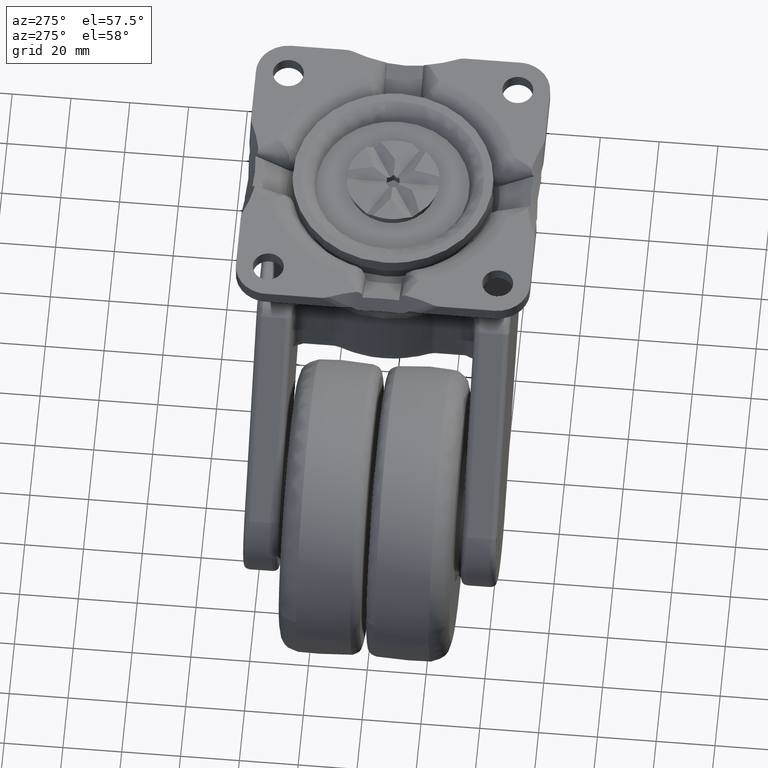
[diagram: clean part render]
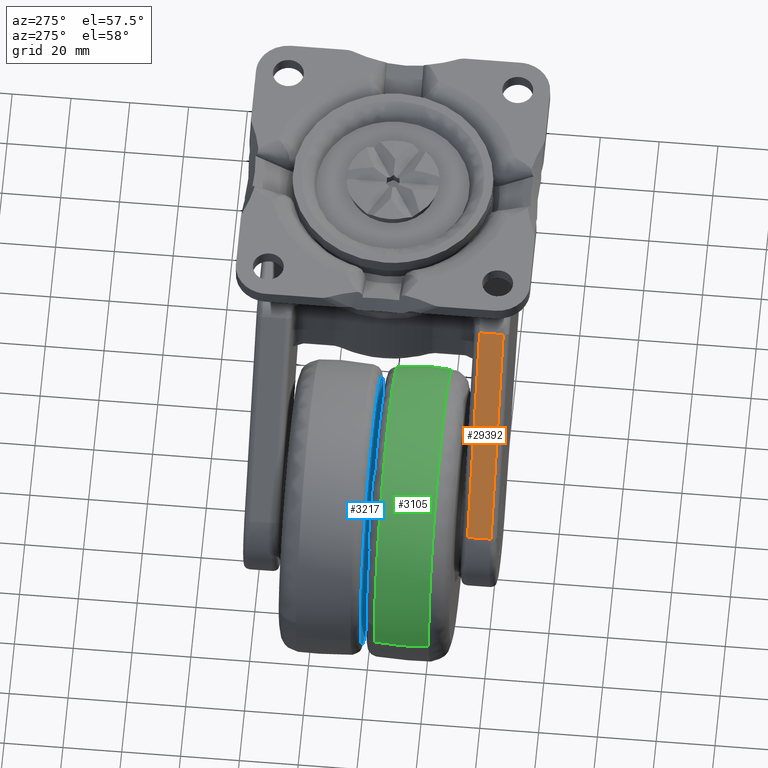
[diagram: same view with three faces highlighted in distinct colors, each labeled with its STEP entity id]
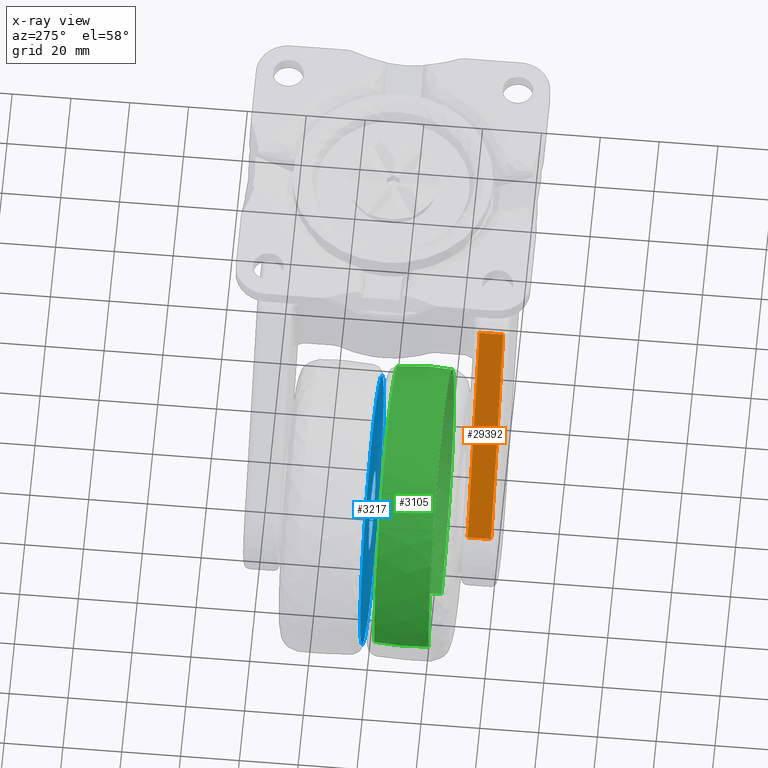
[diagram: x-ray of the same camera — body ghosted, the three highlighted faces saturated]
A machine part, auxiliary view with three faces highlighted in distinct colors.
The next image is the same camera in x-ray (body ghosted, the three faces saturated) — at least one of them is partly hidden behind the body in this view.
Their STEP definitions:

[orange] entity #29392 — the highlighted face is a freeform B-spline surface patch.
#28112=CARTESIAN_POINT('',(-87.504346547844392,-33.0,-67.080286466122487));
#28113=VERTEX_POINT('',#28112);
#28177=CARTESIAN_POINT('',(-40.395540364467550,-33.0,-11.810534422999121));
#28178=VERTEX_POINT('',#28177);
#28200=CARTESIAN_POINT('',(-40.395540364467550,-33.0,-11.810534422999121));
#28201=CARTESIAN_POINT('',(-87.504346547844392,-33.0,-67.080286466122487));
#28202=QUASI_UNIFORM_CURVE('',1,(#28200,#28201),.UNSPECIFIED.,.F.,.U.);
#28203=EDGE_CURVE('',#28178,#28113,#28202,.T.);
#28731=CARTESIAN_POINT('',(-40.395540364467550,-41.0,-11.810534422999121));
#28732=VERTEX_POINT('',#28731);
#28746=CARTESIAN_POINT('',(-87.504346547844392,-41.0,-67.080286466122487));
#28747=VERTEX_POINT('',#28746);
#28748=CARTESIAN_POINT('',(-87.504346547844392,-41.0,-67.080286466122487));
#28749=CARTESIAN_POINT('',(-40.395540364467550,-41.0,-11.810534422999121));
#28750=QUASI_UNIFORM_CURVE('',1,(#28748,#28749),.UNSPECIFIED.,.F.,.U.);
#28751=EDGE_CURVE('',#28747,#28732,#28750,.T.);
#29373=CARTESIAN_POINT('',(-89.857431157092350,-41.399599984494458,-69.841010276090614));
#29374=CARTESIAN_POINT('',(-38.042457861147362,-41.399599984494458,-9.049813083781444));
#29375=CARTESIAN_POINT('',(-89.857431157092350,-32.600399800928827,-69.841010276090614));
#29376=CARTESIAN_POINT('',(-38.042457861147362,-32.600399800928827,-9.049813083781444));
#29377=B_SPLINE_SURFACE_WITH_KNOTS('',1,1,((#29373,#29375),(#29374,#29376)),.UNSPECIFIED.,.F.,.F.,.U.,(2,2),(2,2),(0.0,79.877162654501632),(0.0,8.799200183565624),.UNSPECIFIED.);
#29378=CARTESIAN_POINT('',(-40.395540364467550,-33.0,-11.810534422999121));
#29379=CARTESIAN_POINT('',(-40.395540364467550,-41.0,-11.810534422999121));
#29380=QUASI_UNIFORM_CURVE('',1,(#29378,#29379),.UNSPECIFIED.,.F.,.U.);
#29381=EDGE_CURVE('',#28178,#28732,#29380,.T.);
#29382=ORIENTED_EDGE('',*,*,#29381,.F.);
#29383=ORIENTED_EDGE('',*,*,#28203,.T.);
#29384=CARTESIAN_POINT('',(-87.504346547844392,-33.0,-67.080286466122487));
#29385=CARTESIAN_POINT('',(-87.504346547844392,-41.0,-67.080286466122487));
#29386=QUASI_UNIFORM_CURVE('',1,(#29384,#29385),.UNSPECIFIED.,.F.,.U.);
#29387=EDGE_CURVE('',#28113,#28747,#29386,.T.);
#29388=ORIENTED_EDGE('',*,*,#29387,.T.);
#29389=ORIENTED_EDGE('',*,*,#28751,.T.);
#29390=EDGE_LOOP('',(#29382,#29383,#29388,#29389));
#29391=FACE_OUTER_BOUND('',#29390,.T.);
#29392=ADVANCED_FACE('',(#29391),#29377,.T.);

[blue] entity #3217 — the highlighted face is a freeform B-spline surface patch.
#472=CARTESIAN_POINT('',(-80.948143235102833,1.0,-74.101382418190369));
#473=VERTEX_POINT('',#472);
#474=CARTESIAN_POINT('',(-70.0,1.0,-68.500000000000000));
#475=VERTEX_POINT('',#474);
#476=CARTESIAN_POINT('',(-80.948143235102833,1.0,-74.101382418190369));
#477=CARTESIAN_POINT('',(-76.906985140922359,1.0,-68.500000000000000));
#478=CARTESIAN_POINT('',(-70.0,1.0,-68.500000000000000));
#486=(BOUNDED_CURVE()B_SPLINE_CURVE(2,(#476,#477,#478),.UNSPECIFIED.,.F.,.U.)B_SPLINE_CURVE_WITH_KNOTS((3,3),(0.850743050382080,1.0),.UNSPECIFIED.)CURVE()GEOMETRIC_REPRESENTATION_ITEM()RATIONAL_B_SPLINE_CURVE((0.859068214727308,0.825134606384520,1.0))REPRESENTATION_ITEM(''));
#487=EDGE_CURVE('',#473,#475,#486,.T.);
#558=CARTESIAN_POINT('',(-83.474819778686481,1.0,-82.824155283863035));
#559=VERTEX_POINT('',#558);
#565=CARTESIAN_POINT('',(-70.0,1.0,-95.500000000000000));
#566=VERTEX_POINT('',#565);
#567=CARTESIAN_POINT('',(-70.0,1.0,-95.500000000000000));
#568=CARTESIAN_POINT('',(-82.699531902957787,1.0,-95.500000000000014));
#569=CARTESIAN_POINT('',(-83.474819778686481,1.0,-82.824155283863035));
#577=(BOUNDED_CURVE()B_SPLINE_CURVE(2,(#567,#568,#569),.UNSPECIFIED.,.F.,.U.)B_SPLINE_CURVE_WITH_KNOTS((3,3),(0.500000000000000,0.739332962238319),.UNSPECIFIED.)CURVE()GEOMETRIC_REPRESENTATION_ITEM()RATIONAL_B_SPLINE_CURVE((1.0,0.719603993287441,0.976072041665380))REPRESENTATION_ITEM(''));
#578=EDGE_CURVE('',#566,#559,#577,.T.);
#580=CARTESIAN_POINT('',(-70.0,1.0,-68.500000000000000));
#581=CARTESIAN_POINT('',(-56.500000000000021,1.0,-68.500000000000000));
#582=CARTESIAN_POINT('',(-56.500000000000007,1.0,-82.0));
#583=CARTESIAN_POINT('',(-56.500000000000021,1.0,-95.500000000000000));
#584=CARTESIAN_POINT('',(-70.0,1.0,-95.500000000000000));
#592=(BOUNDED_CURVE()B_SPLINE_CURVE(2,(#580,#581,#582,#583,#584),.UNSPECIFIED.,.F.,.U.)B_SPLINE_CURVE_WITH_KNOTS((3,2,3),(0.0,0.250000000000000,0.500000000000000),.UNSPECIFIED.)CURVE()GEOMETRIC_REPRESENTATION_ITEM()RATIONAL_B_SPLINE_CURVE((1.0,0.707106781186548,1.0,0.707106781186548,1.0))REPRESENTATION_ITEM(''));
#593=EDGE_CURVE('',#475,#566,#592,.T.);
#612=CARTESIAN_POINT('',(-83.474819778686481,1.0,-82.824155283863035));
#613=CARTESIAN_POINT('',(-83.500000000000000,1.0,-82.412462304673838));
#614=CARTESIAN_POINT('',(-83.500000000000000,1.0,-82.0));
#615=CARTESIAN_POINT('',(-83.500000000000000,1.0,-77.638468887838656));
#616=CARTESIAN_POINT('',(-80.948143235102833,1.0,-74.101382418190369));
#624=(BOUNDED_CURVE()B_SPLINE_CURVE(2,(#612,#613,#614,#615,#616),.UNSPECIFIED.,.F.,.U.)B_SPLINE_CURVE_WITH_KNOTS((3,2,3),(0.739332962238319,0.750000000000000,0.850743050382079),.UNSPECIFIED.)CURVE()GEOMETRIC_REPRESENTATION_ITEM()RATIONAL_B_SPLINE_CURVE((0.976072041665382,0.987502787899107,1.0,0.881972174802028,0.859068214727308))REPRESENTATION_ITEM(''));
#625=EDGE_CURVE('',#559,#473,#624,.T.);
#2243=CARTESIAN_POINT('',(-53.760594531535752,1.000000000000001,-124.888851649123690));
#2244=VERTEX_POINT('',#2243);
#2258=CARTESIAN_POINT('',(-70.0,1.0,-127.860351999999910));
#2259=VERTEX_POINT('',#2258);
#2260=CARTESIAN_POINT('',(-53.760594531535759,1.000000000000001,-124.888851649123720));
#2261=CARTESIAN_POINT('',(-61.608433423426540,1.0,-127.860351999999860));
#2262=CARTESIAN_POINT('',(-70.0,1.0,-127.860351999999910));
#2270=(BOUNDED_CURVE()B_SPLINE_CURVE(2,(#2260,#2261,#2262),.UNSPECIFIED.,.F.,.U.)B_SPLINE_CURVE_WITH_KNOTS((3,3),(0.439864366382972,0.500000000000000),.UNSPECIFIED.)CURVE()GEOMETRIC_REPRESENTATION_ITEM()RATIONAL_B_SPLINE_CURVE((0.892987465346021,0.929546722818089,1.0))REPRESENTATION_ITEM(''));
#2271=EDGE_CURVE('',#2244,#2259,#2270,.T.);
#2273=CARTESIAN_POINT('',(-70.0,1.0,-36.139648000000108));
#2274=VERTEX_POINT('',#2273);
#2275=CARTESIAN_POINT('',(-70.0,1.0,-127.860351999999910));
#2276=CARTESIAN_POINT('',(-115.860351999999920,1.0,-127.860351999999890));
#2277=CARTESIAN_POINT('',(-115.860351999999910,1.0,-82.0));
#2278=CARTESIAN_POINT('',(-115.860351999999920,1.0,-36.139648000000101));
#2279=CARTESIAN_POINT('',(-70.0,1.0,-36.139648000000108));
#2287=(BOUNDED_CURVE()B_SPLINE_CURVE(2,(#2275,#2276,#2277,#2278,#2279),.UNSPECIFIED.,.F.,.U.)B_SPLINE_CURVE_WITH_KNOTS((3,2,3),(0.500000000000000,0.750000000000000,1.0),.UNSPECIFIED.)CURVE()GEOMETRIC_REPRESENTATION_ITEM()RATIONAL_B_SPLINE_CURVE((1.0,0.707106781186547,1.0,0.707106781186547,1.0))REPRESENTATION_ITEM(''));
#2288=EDGE_CURVE('',#2259,#2274,#2287,.T.);
#2290=CARTESIAN_POINT('',(-24.501270567257219,1.000000000000001,-76.252173790406772));
#2291=VERTEX_POINT('',#2290);
#2292=CARTESIAN_POINT('',(-70.0,1.0,-36.139648000000108));
#2293=CARTESIAN_POINT('',(-29.568661024950835,1.0,-36.139648000000101));
#2294=CARTESIAN_POINT('',(-24.501270567257222,1.000000000000001,-76.252173790406772));
#2302=(BOUNDED_CURVE()B_SPLINE_CURVE(2,(#2292,#2293,#2294),.UNSPECIFIED.,.F.,.U.)B_SPLINE_CURVE_WITH_KNOTS((3,3),(0.0,0.228321256479597),.UNSPECIFIED.)CURVE()GEOMETRIC_REPRESENTATION_ITEM()RATIONAL_B_SPLINE_CURVE((1.0,0.732505009064636,0.953608357588158))REPRESENTATION_ITEM(''));
#2303=EDGE_CURVE('',#2274,#2291,#2302,.T.);
#2401=CARTESIAN_POINT('',(-24.501270567257226,1.000000000000001,-76.252173790406758));
#2402=CARTESIAN_POINT('',(-24.139648000000111,1.0,-79.114711213518618));
#2403=CARTESIAN_POINT('',(-24.139648000000111,1.0,-82.0));
#2404=CARTESIAN_POINT('',(-24.139648000000111,1.0,-113.673196701891300));
#2405=CARTESIAN_POINT('',(-53.760594531535752,1.000000000000001,-124.888851649123680));
#2413=(BOUNDED_CURVE()B_SPLINE_CURVE(2,(#2401,#2402,#2403,#2404,#2405),.UNSPECIFIED.,.F.,.U.)B_SPLINE_CURVE_WITH_KNOTS((3,2,3),(0.228321256479597,0.250000000000000,0.439864366382972),.UNSPECIFIED.)CURVE()GEOMETRIC_REPRESENTATION_ITEM()RATIONAL_B_SPLINE_CURVE((0.953608357588158,0.974601772121912,1.0,0.777560058368459,0.892987465346020))REPRESENTATION_ITEM(''));
#2414=EDGE_CURVE('',#2291,#2244,#2413,.T.);
#3200=CARTESIAN_POINT('',(-120.441731565640690,1.0,-132.441800987027310));
#3201=CARTESIAN_POINT('',(-120.441731565640690,1.0,-31.558196552831649));
#3202=CARTESIAN_POINT('',(-19.559655791857939,1.0,-132.441800987027310));
#3203=CARTESIAN_POINT('',(-19.559655791857939,1.0,-31.558196552831649));
#3204=B_SPLINE_SURFACE_WITH_KNOTS('',1,1,((#3200,#3202),(#3201,#3203)),.UNSPECIFIED.,.F.,.F.,.U.,(2,2),(2,2),(0.0,100.883604434195700),(0.0,100.882075773782800),.UNSPECIFIED.);
#3205=ORIENTED_EDGE('',*,*,#2288,.F.);
#3206=ORIENTED_EDGE('',*,*,#2271,.F.);
#3207=ORIENTED_EDGE('',*,*,#2414,.F.);
#3208=ORIENTED_EDGE('',*,*,#2303,.F.);
#3209=EDGE_LOOP('',(#3205,#3206,#3207,#3208));
#3210=FACE_OUTER_BOUND('',#3209,.T.);
#3211=ORIENTED_EDGE('',*,*,#593,.T.);
#3212=ORIENTED_EDGE('',*,*,#578,.T.);
#3213=ORIENTED_EDGE('',*,*,#625,.T.);
#3214=ORIENTED_EDGE('',*,*,#487,.T.);
#3215=EDGE_LOOP('',(#3211,#3212,#3213,#3214));
#3216=FACE_BOUND('',#3215,.T.);
#3217=ADVANCED_FACE('',(#3210,#3216),#3204,.F.);

[green] entity #3105 — the highlighted face is a freeform B-spline surface patch.
#2460=CARTESIAN_POINT('',(-21.814614185604739,-4.075178006739032,-92.585782250030746));
#2461=VERTEX_POINT('',#2460);
#2475=CARTESIAN_POINT('',(-70.0,-4.075199615467200,-131.334476752008100));
#2476=VERTEX_POINT('',#2475);
#2477=CARTESIAN_POINT('',(-21.814614185604739,-4.075178006739032,-92.585782250030746));
#2478=CARTESIAN_POINT('',(-30.327259561233504,-4.075199511086208,-131.334476934002370));
#2479=CARTESIAN_POINT('',(-70.0,-4.075199615467200,-131.334476752008100));
#2487=(BOUNDED_CURVE()B_SPLINE_CURVE(2,(#2477,#2478,#2479),.UNSPECIFIED.,.F.,.U.)B_SPLINE_CURVE_WITH_KNOTS((3,3),(0.286726866654243,0.500000000000000),.UNSPECIFIED.)CURVE()GEOMETRIC_REPRESENTATION_ITEM()RATIONAL_B_SPLINE_CURVE((0.926585926404647,0.750134981951722,1.0))REPRESENTATION_ITEM(''));
#2488=EDGE_CURVE('',#2461,#2476,#2487,.T.);
#2490=CARTESIAN_POINT('',(-119.004510757668900,-4.075195262338335,-87.696355788554911));
#2491=VERTEX_POINT('',#2490);
#2505=CARTESIAN_POINT('',(-119.085386698504490,-4.075189863334661,-77.048707424651781));
#2506=VERTEX_POINT('',#2505);
#2507=CARTESIAN_POINT('',(-119.004510757668910,-4.075195262338335,-87.696355788554911));
#2508=CARTESIAN_POINT('',(-119.334476021567530,-4.075193969185103,-84.857734970896715));
#2509=CARTESIAN_POINT('',(-119.334475845166910,-4.075192517006574,-82.000000669213279));
#2510=CARTESIAN_POINT('',(-119.334475691964850,-4.075191255804797,-79.518088488223086));
#2511=CARTESIAN_POINT('',(-119.085386698504440,-4.075189863334661,-77.048707424651781));
#2519=(BOUNDED_CURVE()B_SPLINE_CURVE(2,(#2507,#2508,#2509,#2510,#2511),.UNSPECIFIED.,.F.,.U.)B_SPLINE_CURVE_WITH_KNOTS((3,2,3),(0.730000039652547,0.750000000000000,0.767423445131427),.UNSPECIFIED.)CURVE()GEOMETRIC_REPRESENTATION_ITEM()RATIONAL_B_SPLINE_CURVE((0.956886196236501,0.976568588950773,1.0,0.979587164290546,0.962019623964777))REPRESENTATION_ITEM(''));
#2520=EDGE_CURVE('',#2491,#2506,#2519,.T.);
#2615=CARTESIAN_POINT('',(-70.0,-4.075145122996375,-32.665529911929397));
#2616=VERTEX_POINT('',#2615);
#2617=CARTESIAN_POINT('',(-119.085386698504440,-4.075189863334661,-77.048707424651781));
#2618=CARTESIAN_POINT('',(-114.608406533325790,-4.075165308743641,-32.665530196956368));
#2619=CARTESIAN_POINT('',(-70.0,-4.075145122996375,-32.665529911929397));
#2627=(BOUNDED_CURVE()B_SPLINE_CURVE(2,(#2617,#2618,#2619),.UNSPECIFIED.,.F.,.U.)B_SPLINE_CURVE_WITH_KNOTS((3,3),(0.767423445131428,1.0),.UNSPECIFIED.)CURVE()GEOMETRIC_REPRESENTATION_ITEM()RATIONAL_B_SPLINE_CURVE((0.962019623964776,0.727519616896001,1.0))REPRESENTATION_ITEM(''));
#2628=EDGE_CURVE('',#2506,#2616,#2627,.T.);
#2630=CARTESIAN_POINT('',(-70.0,-4.075145122996375,-32.665529911929397));
#2631=CARTESIAN_POINT('',(-20.665529245749177,-4.075145039057501,-32.665530058281632));
#2632=CARTESIAN_POINT('',(-20.665528417330119,-4.075172180911910,-82.000003660315230));
#2633=CARTESIAN_POINT('',(-20.665528327405259,-4.075175127159555,-87.355259586416494));
#2634=CARTESIAN_POINT('',(-21.814614185604739,-4.075178006739032,-92.585782250030746));
#2642=(BOUNDED_CURVE()B_SPLINE_CURVE(2,(#2630,#2631,#2632,#2633,#2634),.UNSPECIFIED.,.F.,.U.)B_SPLINE_CURVE_WITH_KNOTS((3,2,3),(0.0,0.250000000000000,0.286726866654243),.UNSPECIFIED.)CURVE()GEOMETRIC_REPRESENTATION_ITEM()RATIONAL_B_SPLINE_CURVE((1.0,0.707106781186547,1.0,0.956971799234825,0.926585926404647))REPRESENTATION_ITEM(''));
#2643=EDGE_CURVE('',#2616,#2461,#2642,.T.);
#2666=CARTESIAN_POINT('',(-54.169124254804863,-22.590360868650340,-34.910495128110178));
#2667=VERTEX_POINT('',#2666);
#2668=CARTESIAN_POINT('',(-20.571477017574111,-22.590351365811038,-77.014094920766382));
#2669=VERTEX_POINT('',#2668);
#2670=CARTESIAN_POINT('',(-54.169124254804856,-22.590360868650343,-34.910495128110171));
#2671=CARTESIAN_POINT('',(-23.788249168682270,-22.590358549978681,-45.124148289022258));
#2672=CARTESIAN_POINT('',(-20.571477017574114,-22.590351365811038,-77.014094920766382));
#2680=(BOUNDED_CURVE()B_SPLINE_CURVE(2,(#2670,#2671,#2672),.UNSPECIFIED.,.F.,.U.)B_SPLINE_CURVE_WITH_KNOTS((3,3),(0.054168823066889,0.232576555802283),.UNSPECIFIED.)CURVE()GEOMETRIC_REPRESENTATION_ITEM()RATIONAL_B_SPLINE_CURVE((0.900576160871229,0.782136425779017,0.962019625847641))REPRESENTATION_ITEM(''));
#2681=EDGE_CURVE('',#2667,#2669,#2680,.T.);
#2764=CARTESIAN_POINT('',(-70.0,-22.590361450521598,-32.320647186090397));
#2765=VERTEX_POINT('',#2764);
#2766=CARTESIAN_POINT('',(-70.0,-22.590361450521598,-32.320647186090397));
#2767=CARTESIAN_POINT('',(-61.872719390581864,-22.590361450521602,-32.320647186090390));
#2768=CARTESIAN_POINT('',(-54.169124254804856,-22.590360868650347,-34.910495128110178));
#2776=(BOUNDED_CURVE()B_SPLINE_CURVE(2,(#2766,#2767,#2768),.UNSPECIFIED.,.F.,.U.)B_SPLINE_CURVE_WITH_KNOTS((3,3),(0.0,0.054168823066889),.UNSPECIFIED.)CURVE()GEOMETRIC_REPRESENTATION_ITEM()RATIONAL_B_SPLINE_CURVE((1.0,0.936537276210410,0.900576160871229))REPRESENTATION_ITEM(''));
#2777=EDGE_CURVE('',#2765,#2667,#2776,.T.);
#2779=CARTESIAN_POINT('',(-119.347087251288600,-22.590326149548009,-87.736148372364823));
#2780=VERTEX_POINT('',#2779);
#2781=CARTESIAN_POINT('',(-119.347087251288640,-22.590326149548012,-87.736148372364823));
#2782=CARTESIAN_POINT('',(-119.679355953179380,-22.590327059998049,-84.877697768358004));
#2783=CARTESIAN_POINT('',(-119.679355859850600,-22.590328082409918,-82.000000354062820));
#2784=CARTESIAN_POINT('',(-119.679354248661410,-22.590345732896708,-32.320647352867191));
#2785=CARTESIAN_POINT('',(-70.0,-22.590361450521598,-32.320647186090397));
#2793=(BOUNDED_CURVE()B_SPLINE_CURVE(2,(#2781,#2782,#2783,#2784,#2785),.UNSPECIFIED.,.F.,.U.)B_SPLINE_CURVE_WITH_KNOTS((3,2,3),(0.730000137760226,0.750000000000000,1.0),.UNSPECIFIED.)CURVE()GEOMETRIC_REPRESENTATION_ITEM()RATIONAL_B_SPLINE_CURVE((0.956886389336359,0.976568703891067,1.0,0.707106781186548,1.0))REPRESENTATION_ITEM(''));
#2794=EDGE_CURVE('',#2780,#2765,#2793,.T.);
#2796=CARTESIAN_POINT('',(-70.0,-22.590338941506740,-131.679354847171710));
#2797=VERTEX_POINT('',#2796);
#2811=CARTESIAN_POINT('',(-20.571477017574107,-22.590351365811035,-77.014094920766382));
#2812=CARTESIAN_POINT('',(-20.320647186090408,-22.590350762204448,-79.500738623304827));
#2813=CARTESIAN_POINT('',(-20.320647186090412,-22.590350196014171,-82.000001016631060));
#2814=CARTESIAN_POINT('',(-20.320647186090401,-22.590338941506740,-131.679354847171740));
#2815=CARTESIAN_POINT('',(-70.0,-22.590338941506740,-131.679354847171710));
#2823=(BOUNDED_CURVE()B_SPLINE_CURVE(2,(#2811,#2812,#2813,#2814,#2815),.UNSPECIFIED.,.F.,.U.)B_SPLINE_CURVE_WITH_KNOTS((3,2,3),(0.232576555802283,0.250000000000000,0.500000000000000),.UNSPECIFIED.)CURVE()GEOMETRIC_REPRESENTATION_ITEM()RATIONAL_B_SPLINE_CURVE((0.962019625847641,0.979587165384456,1.0,0.707106781186548,1.0))REPRESENTATION_ITEM(''));
#2824=EDGE_CURVE('',#2669,#2797,#2823,.T.);
#3012=CARTESIAN_POINT('',(-118.885899501453450,-3.139488662628267,-87.682578635520130));
#3013=CARTESIAN_POINT('',(-119.665582081654190,-9.043770787833900,-87.773210241318921));
#3014=CARTESIAN_POINT('',(-119.665582081654240,-15.000000000000002,-87.773210241318935));
#3015=CARTESIAN_POINT('',(-119.665582081654150,-19.270538672028835,-87.773210241318935));
#3016=CARTESIAN_POINT('',(-119.263919295912600,-23.521889940049924,-87.726520288015124));
#3017=CARTESIAN_POINT('',(-119.215067510012430,-3.139488662628268,-84.850822980627598));
#3018=CARTESIAN_POINT('',(-119.999999999999990,-9.043770787833900,-84.896290836183084));
#3019=CARTESIAN_POINT('',(-119.999999999999970,-14.999999999999996,-84.896290836183070));
#3020=CARTESIAN_POINT('',(-120.000000000000070,-19.270538672028827,-84.896290836183084));
#3021=CARTESIAN_POINT('',(-119.595632660580430,-23.521889940049920,-84.872867527790802));
#3022=CARTESIAN_POINT('',(-119.215067510012400,-3.139488662628267,-82.0));
#3023=CARTESIAN_POINT('',(-119.999999999999970,-9.043770787833898,-82.0));
#3024=CARTESIAN_POINT('',(-120.0,-15.0,-82.0));
#3025=CARTESIAN_POINT('',(-120.0,-19.270538672028835,-82.0));
#3026=CARTESIAN_POINT('',(-119.595632660580460,-23.521889940049928,-82.0));
#3027=CARTESIAN_POINT('',(-119.215067510012470,-3.139488662628267,-32.784932489987575));
#3028=CARTESIAN_POINT('',(-120.000000000000030,-9.043770787833900,-32.000000000000007));
#3029=CARTESIAN_POINT('',(-120.0,-14.999999999999995,-31.999999999999996));
#3030=CARTESIAN_POINT('',(-120.000000000000010,-19.270538672028827,-32.000000000000007));
#3031=CARTESIAN_POINT('',(-119.595632660580490,-23.521889940049917,-32.404367339419522));
#3032=CARTESIAN_POINT('',(-70.0,-3.139488662628267,-32.784932489987561));
#3033=CARTESIAN_POINT('',(-70.0,-9.043770787833898,-31.999999999999996));
#3034=CARTESIAN_POINT('',(-70.0,-15.0,-32.0));
#3035=CARTESIAN_POINT('',(-70.0,-19.270538672028835,-31.999999999999996));
#3036=CARTESIAN_POINT('',(-70.0,-23.521889940049928,-32.404367339419530));
#3037=CARTESIAN_POINT('',(-20.784932489987575,-3.139488662628267,-32.784932489987575));
#3038=CARTESIAN_POINT('',(-20.000000000000007,-9.043770787833900,-32.000000000000007));
#3039=CARTESIAN_POINT('',(-19.999999999999996,-14.999999999999995,-31.999999999999996));
#3040=CARTESIAN_POINT('',(-20.0,-19.270538672028827,-32.000000000000007));
#3041=CARTESIAN_POINT('',(-20.404367339419512,-23.521889940049917,-32.404367339419522));
#3042=CARTESIAN_POINT('',(-20.784932489987568,-3.139488662628267,-82.0));
#3043=CARTESIAN_POINT('',(-20.000000000000004,-9.043770787833898,-82.0));
#3044=CARTESIAN_POINT('',(-20.0,-15.0,-82.0));
#3045=CARTESIAN_POINT('',(-20.000000000000007,-19.270538672028835,-82.0));
#3046=CARTESIAN_POINT('',(-20.404367339419522,-23.521889940049928,-82.0));
#3047=CARTESIAN_POINT('',(-20.784932489987575,-3.139488662628267,-131.215067510012460));
#3048=CARTESIAN_POINT('',(-20.000000000000007,-9.043770787833900,-132.000000000000030));
#3049=CARTESIAN_POINT('',(-19.999999999999996,-14.999999999999995,-132.0));
#3050=CARTESIAN_POINT('',(-20.0,-19.270538672028827,-132.0));
#3051=CARTESIAN_POINT('',(-20.404367339419512,-23.521889940049917,-131.595632660580490));
#3052=CARTESIAN_POINT('',(-70.0,-3.139488662628267,-131.215067510012370));
#3053=CARTESIAN_POINT('',(-70.0,-9.043770787833898,-132.000000000000030));
#3054=CARTESIAN_POINT('',(-70.0,-15.0,-132.0));
#3055=CARTESIAN_POINT('',(-70.0,-19.270538672028835,-131.999999999999970));
#3056=CARTESIAN_POINT('',(-70.0,-23.521889940049928,-131.595632660580490));
#3064=(BOUNDED_SURFACE()B_SPLINE_SURFACE(2,2,((#3012,#3017,#3022,#3027,#3032,#3037,#3042,#3047,#3052),(#3013,#3018,#3023,#3028,#3033,#3038,#3043,#3048,#3053),(#3014,#3019,#3024,#3029,#3034,#3039,#3044,#3049,#3054),(#3015,#3020,#3025,#3030,#3035,#3040,#3045,#3050,#3055),(#3016,#3021,#3026,#3031,#3036,#3041,#3046,#3051,#3056)),.UNSPECIFIED.,.F.,.F.,.U.)B_SPLINE_SURFACE_WITH_KNOTS((3,2,3),(3,2,2,2,3),(0.0,12.084150414209841,20.793947707804222),(0.0,6.627415615382595,89.470128090001595,172.312840564620590,255.155553039239610),.UNSPECIFIED.)GEOMETRIC_REPRESENTATION_ITEM()RATIONAL_B_SPLINE_SURFACE(((0.925833357093569,0.944877046190017,0.967548103737302,0.684159825276832,0.967548103737302,0.684159825276832,0.967548103737302,0.684159825276832,0.967548103737302),(0.939177216581868,0.958495378734935,0.981493189908069,0.694020490272412,0.981493189908069,0.694020490272412,0.981493189908069,0.694020490272412,0.981493189908069),(0.956886126402807,0.976568547383107,1.0,0.707106781186548,1.0,0.707106781186548,1.0,0.707106781186548,1.0),(0.944122215863465,0.963542092896624,0.986660993207912,0.697674679029568,0.986660993207912,0.697674679029568,0.986660993207912,0.697674679029568,0.986660993207912),(0.933625940087981,0.952829916699096,0.975691792708640,0.689918282972338,0.975691792708640,0.689918282972338,0.975691792708640,0.689918282972338,0.975691792708640)))REPRESENTATION_ITEM('')SURFACE());
#3065=ORIENTED_EDGE('',*,*,#2628,.F.);
#3066=ORIENTED_EDGE('',*,*,#2520,.F.);
#3067=CARTESIAN_POINT('',(-119.004510757668870,-4.075195262338335,-87.696355788554911));
#3068=CARTESIAN_POINT('',(-119.665584182624600,-9.517326237244921,-87.773191517980621));
#3069=CARTESIAN_POINT('',(-119.665585095382350,-14.999999987281541,-87.773183013352678));
#3070=CARTESIAN_POINT('',(-119.665585728330190,-18.801935661045967,-87.773177115856328));
#3071=CARTESIAN_POINT('',(-119.347087251288640,-22.590326149548009,-87.736148372364823));
#3079=(BOUNDED_CURVE()B_SPLINE_CURVE(2,(#3067,#3068,#3069,#3070,#3071),.UNSPECIFIED.,.F.,.U.)B_SPLINE_CURVE_WITH_KNOTS((3,2,3),(0.443193513096456,0.500000000000000,0.539599308571031),.UNSPECIFIED.)CURVE()GEOMETRIC_REPRESENTATION_ITEM()RATIONAL_B_SPLINE_CURVE((0.927945639992234,0.940561151024383,0.956886118190660,0.945506125385841,0.935928691967479))REPRESENTATION_ITEM(''));
#3080=EDGE_CURVE('',#2491,#2780,#3079,.T.);
#3081=ORIENTED_EDGE('',*,*,#3080,.T.);
#3082=ORIENTED_EDGE('',*,*,#2794,.T.);
#3083=ORIENTED_EDGE('',*,*,#2777,.T.);
#3084=ORIENTED_EDGE('',*,*,#2681,.T.);
#3085=ORIENTED_EDGE('',*,*,#2824,.T.);
#3086=CARTESIAN_POINT('',(-70.0,-4.075199615467201,-131.334476752008190));
#3087=CARTESIAN_POINT('',(-70.0,-9.517328444503722,-132.0));
#3088=CARTESIAN_POINT('',(-70.0,-15.0,-132.0));
#3089=CARTESIAN_POINT('',(-70.0,-18.801942113900427,-132.0));
#3090=CARTESIAN_POINT('',(-70.0,-22.590338941506737,-131.679354847171710));
#3098=(BOUNDED_CURVE()B_SPLINE_CURVE(2,(#3086,#3087,#3088,#3089,#3090),.UNSPECIFIED.,.F.,.U.)B_SPLINE_CURVE_WITH_KNOTS((3,2,3),(0.443193535511313,0.500000000000000,0.539599374805440),.UNSPECIFIED.)CURVE()GEOMETRIC_REPRESENTATION_ITEM()RATIONAL_B_SPLINE_CURVE((0.969755577291242,0.982939494664636,1.0,0.988107245342124,0.978098273280914))REPRESENTATION_ITEM(''));
#3099=EDGE_CURVE('',#2476,#2797,#3098,.T.);
#3100=ORIENTED_EDGE('',*,*,#3099,.F.);
#3101=ORIENTED_EDGE('',*,*,#2488,.F.);
#3102=ORIENTED_EDGE('',*,*,#2643,.F.);
#3103=EDGE_LOOP('',(#3065,#3066,#3081,#3082,#3083,#3084,#3085,#3100,#3101,#3102));
#3104=FACE_OUTER_BOUND('',#3103,.T.);
#3105=ADVANCED_FACE('',(#3104),#3064,.T.);